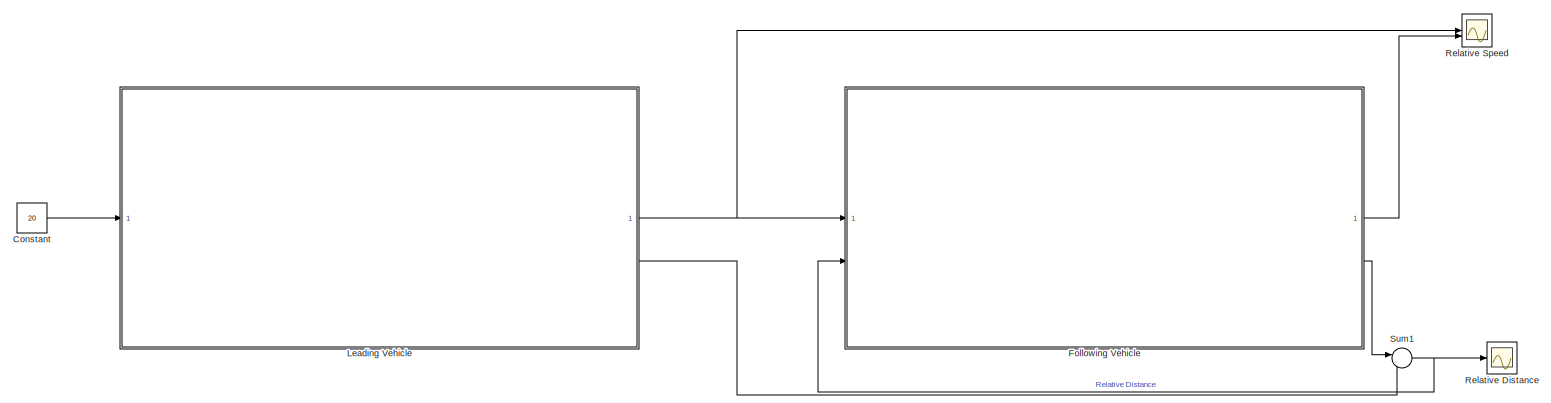
[diagram: root canvas - part 1/1, most of the canvas]
MODEL slx_02bbfdf1a8ff
KIND model
CONFIG AbsTol = auto
CONFIG EnableMultiTasking = off
CONFIG FixedStep = auto
CONFIG MaxStep = auto
CONFIG MinStep = auto
CONFIG RelTol = 1e-3
CONFIG SampleTimeConstraint = Unconstrained
CONFIG SolverName = VariableStepAuto
CONFIG StartTime = 0.0
CONFIG StopTime = 100
BLOCK [Constant] Constant
  Value = 20
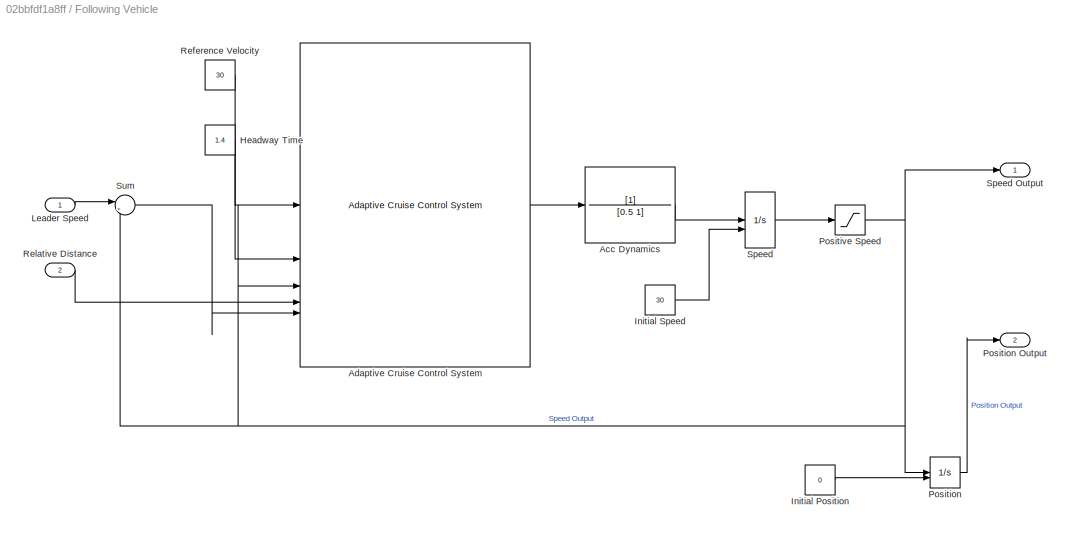
BLOCK [SubSystem] Following Vehicle
BLOCK [TransferFcn] Following Vehicle/Acc Dynamics
  Denominator = [0.5 1]
BLOCK [Reference] Following Vehicle/Adaptive Cruise Control System  REF=mpcadaslib/Adaptive Cruise Control System
  LibrarySourceBlock = mpclib/Automated Driving/Adaptive Cruise Control System
  SourceBlock = mpcadaslib/Adaptive Cruise Control System
  SourceType = Adaptive cruise control (ACC) system
BLOCK [Constant] Following Vehicle/Headway Time
  Value = 1.4
BLOCK [Constant] Following Vehicle/Initial Position
  Value = 0
BLOCK [Constant] Following Vehicle/Initial Speed
  Value = 30
BLOCK [Inport] Following Vehicle/Leader Speed
BLOCK [Integrator] Following Vehicle/Position
  InitialConditionSource = external
BLOCK [Outport] Following Vehicle/Position Output
  Port = 2
BLOCK [Saturate] Following Vehicle/Positive Speed
  LowerLimit = 0
  UpperLimit = inf
BLOCK [Constant] Following Vehicle/Reference Velocity
  Value = 30
BLOCK [Inport] Following Vehicle/Relative Distance
  Port = 2
BLOCK [Integrator] Following Vehicle/Speed
  InitialConditionSource = external
BLOCK [Outport] Following Vehicle/Speed Output
BLOCK [Sum] Following Vehicle/Sum
  Inputs = |+-
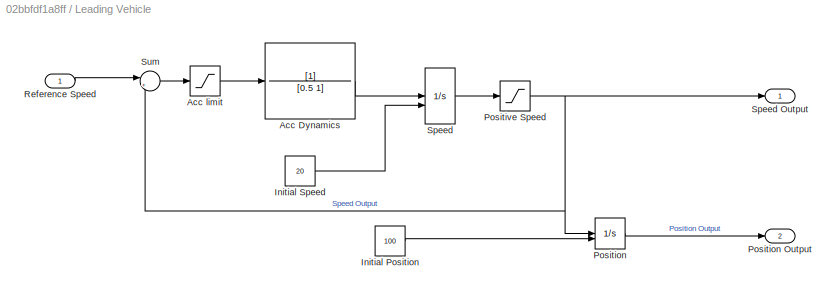
BLOCK [SubSystem] Leading Vehicle
BLOCK [TransferFcn] Leading Vehicle/Acc Dynamics
  Denominator = [0.5 1]
BLOCK [Saturate] Leading Vehicle/Acc limit
  LowerLimit = -3
  UpperLimit = 2
BLOCK [Constant] Leading Vehicle/Initial Position
  Value = 100
BLOCK [Constant] Leading Vehicle/Initial Speed
  Value = 20
BLOCK [Integrator] Leading Vehicle/Position
  InitialConditionSource = external
BLOCK [Outport] Leading Vehicle/Position Output
  Port = 2
BLOCK [Saturate] Leading Vehicle/Positive Speed
  LowerLimit = 0
  UpperLimit = inf
BLOCK [Inport] Leading Vehicle/Reference Speed
BLOCK [Integrator] Leading Vehicle/Speed
  InitialConditionSource = external
BLOCK [Outport] Leading Vehicle/Speed Output
BLOCK [Sum] Leading Vehicle/Sum
  Inputs = |+-
BLOCK [Scope] Relative Distance
  Floating = off
  NumInputPorts = 1
  ScopeSpecificationString = Simulink.scopes.TimeScopeBlockCfg('CurrentConfiguration', extmgr.ConfigurationSet(extmgr.Configuration('Core','General UI',true),extmgr.Configuration('Core','Source UI',true),extmgr.Configuration('Sources','WiredSimulink',true),extmgr.Configuration('Visuals','Time Domain',true,'SerializedDisplays',{struct('MinYLimReal','30.21493','MaxYLimReal','107.7539','YLabelReal','','MinYLimMag','30.21493','Ma...<+1371ch>
BLOCK [Scope] Relative Speed
  Floating = off
  NumInputPorts = 2
  ScopeSpecificationString = Simulink.scopes.TimeScopeBlockCfg('CurrentConfiguration', extmgr.ConfigurationSet(extmgr.Configuration('Core','General UI',true),extmgr.Configuration('Core','Source UI',true),extmgr.Configuration('Sources','WiredSimulink',true,'DataLoggingVariableName','ScopeData3'),extmgr.Configuration('Visuals','Time Domain',true,'SerializedDisplays',{struct('MinYLimReal','17.68105','MaxYLimReal','31.36877','YLa...<+1578ch>
BLOCK [Sum] Sum1
  Inputs = |-+
LINE Constant:1 -> Leading Vehicle:1
LINE Following Vehicle/Acc Dynamics:1 -> Following Vehicle/Speed:1
LINE Following Vehicle/Adaptive Cruise Control System:1 -> Following Vehicle/Acc Dynamics:1
LINE Following Vehicle/Headway Time:1 -> Following Vehicle/Adaptive Cruise Control System:2
LINE Following Vehicle/Initial Position:1 -> Following Vehicle/Position:2
LINE Following Vehicle/Initial Speed:1 -> Following Vehicle/Speed:2
LINE Following Vehicle/Leader Speed:1 -> Following Vehicle/Sum:1
LINE Following Vehicle/Position:1 -> Following Vehicle/Position Output:1
NET Following Vehicle/Positive Speed:1 -> Following Vehicle/Adaptive Cruise Control System:3, Following Vehicle/Position:1, Following Vehicle/Speed Output:1, Following Vehicle/Sum:2
LINE Following Vehicle/Reference Velocity:1 -> Following Vehicle/Adaptive Cruise Control System:1
LINE Following Vehicle/Relative Distance:1 -> Following Vehicle/Adaptive Cruise Control System:4
LINE Following Vehicle/Speed:1 -> Following Vehicle/Positive Speed:1
LINE Following Vehicle/Sum:1 -> Following Vehicle/Adaptive Cruise Control System:5
LINE Following Vehicle:1 -> Relative Speed:2
LINE Following Vehicle:2 -> Sum1:1
LINE Leading Vehicle/Acc Dynamics:1 -> Leading Vehicle/Speed:1
LINE Leading Vehicle/Acc limit:1 -> Leading Vehicle/Acc Dynamics:1
LINE Leading Vehicle/Initial Position:1 -> Leading Vehicle/Position:2
LINE Leading Vehicle/Initial Speed:1 -> Leading Vehicle/Speed:2
LINE Leading Vehicle/Position:1 -> Leading Vehicle/Position Output:1
NET Leading Vehicle/Positive Speed:1 -> Leading Vehicle/Position:1, Leading Vehicle/Speed Output:1, Leading Vehicle/Sum:2
LINE Leading Vehicle/Reference Speed:1 -> Leading Vehicle/Sum:1
LINE Leading Vehicle/Speed:1 -> Leading Vehicle/Positive Speed:1
LINE Leading Vehicle/Sum:1 -> Leading Vehicle/Acc limit:1
NET Leading Vehicle:1 -> Following Vehicle:1, Relative Speed:1
LINE Leading Vehicle:2 -> Sum1:2
NET Sum1:1 -> Following Vehicle:2, Relative Distance:1
note: NET lines group one-source signal fan-out (src -> all destinations, sorted); 1:1 wires keep LINE
